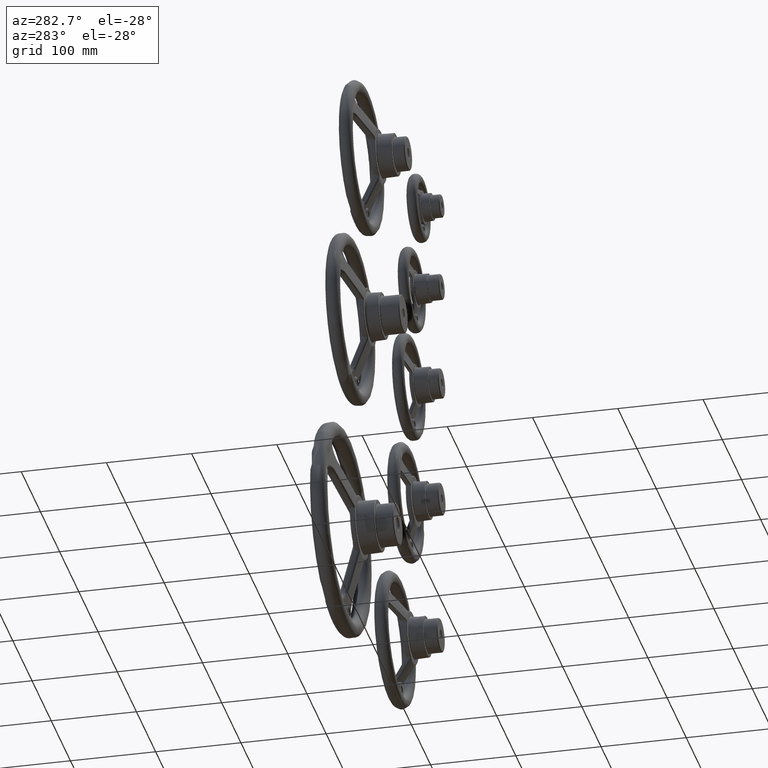
[diagram: clean part render]
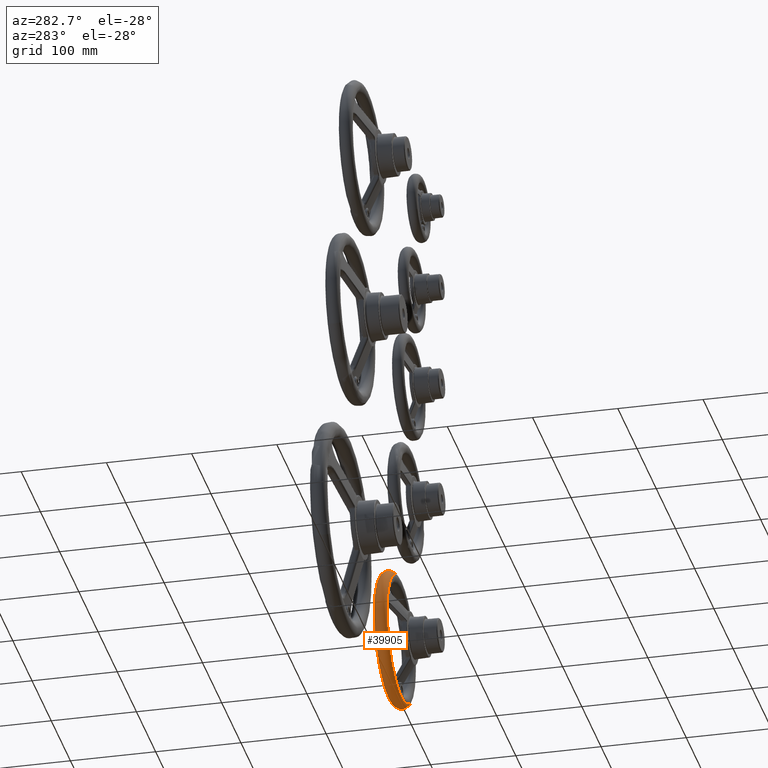
[diagram: same view with one face highlighted and labeled with its STEP entity id]
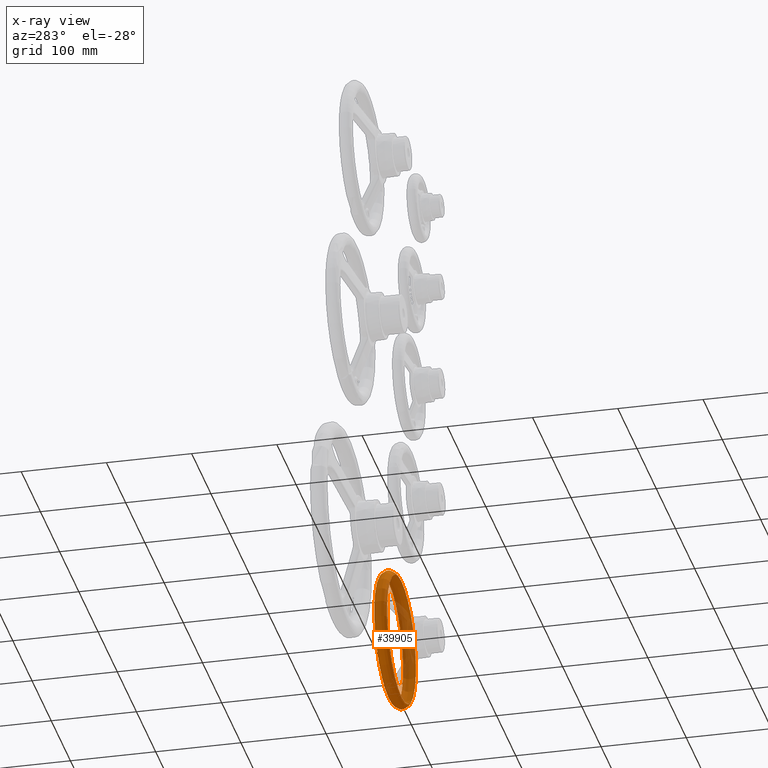
[diagram: x-ray of the same camera — body ghosted, the highlighted face saturated]
A machine part, auxiliary view. The second image highlights one B-rep face of the part: STEP entity #39905.
The next image is the same camera in x-ray: the body ghosted, the highlighted face saturated — about 21% of this face is hidden behind the body in this view.
In plain terms, the highlighted toroidal blend (fillet) surface has major radius 72 mm and minor (blend) radius 8 mm.
Its self-contained STEP definition (entity closure, byte-faithful):
#6421=FACE_OUTER_BOUND('',#9418,.T.);
#8153=FACE_BOUND('',#9419,.T.);
#9418=EDGE_LOOP('',(#31201,#31202));
#9419=EDGE_LOOP('',(#31203,#31204));
#14660=CIRCLE('',#42716,74.6455755761395);
#14661=CIRCLE('',#42717,74.6455755761395);
#14662=CIRCLE('',#42718,74.6455755761405);
#14663=CIRCLE('',#42719,74.6455755761401);
#17097=VERTEX_POINT('',#109901);
#17098=VERTEX_POINT('',#109902);
#17099=VERTEX_POINT('',#109905);
#17100=VERTEX_POINT('',#109906);
#22145=EDGE_CURVE('',#17097,#17098,#14660,.T.);
#22146=EDGE_CURVE('',#17098,#17097,#14661,.T.);
#22147=EDGE_CURVE('',#17099,#17100,#14662,.T.);
#22148=EDGE_CURVE('',#17100,#17099,#14663,.T.);
#31201=ORIENTED_EDGE('',*,*,#22145,.T.);
#31202=ORIENTED_EDGE('',*,*,#22146,.T.);
#31203=ORIENTED_EDGE('',*,*,#22147,.T.);
#31204=ORIENTED_EDGE('',*,*,#22148,.T.);
#38742=TOROIDAL_SURFACE('',#42715,72.,8.00000000000006);
#39905=ADVANCED_FACE('',(#6421,#8153),#38742,.T.);
#42715=AXIS2_PLACEMENT_3D('',#109900,#47668,#47669);
#42716=AXIS2_PLACEMENT_3D('',#109903,#47670,#47671);
#42717=AXIS2_PLACEMENT_3D('',#109904,#47672,#47673);
#42718=AXIS2_PLACEMENT_3D('',#109907,#47674,#47675);
#42719=AXIS2_PLACEMENT_3D('',#109908,#47676,#47677);
#47668=DIRECTION('center_axis',(1.,0.,0.));
#47669=DIRECTION('ref_axis',(0.,0.,-1.));
#47670=DIRECTION('center_axis',(1.,0.,0.));
#47671=DIRECTION('ref_axis',(0.,0.,-1.));
#47672=DIRECTION('center_axis',(1.,0.,0.));
#47673=DIRECTION('ref_axis',(0.,0.,-1.));
#47674=DIRECTION('center_axis',(-1.,0.,3.63116689809562E-19));
#47675=DIRECTION('ref_axis',(3.63116689809562E-19,0.,1.));
#47676=DIRECTION('center_axis',(-1.,0.,0.));
#47677=DIRECTION('ref_axis',(0.,0.,1.));
#109900=CARTESIAN_POINT('Origin',(-8.00000000000006,-1.38777878078145E-14,
4.57072325999156E-15));
#109901=CARTESIAN_POINT('',(-15.5498960172281,-74.6455755761394,1.85287909924146E-14));
#109902=CARTESIAN_POINT('',(-15.5498960172281,74.6455755761394,-1.15907401182839E-14));
#109903=CARTESIAN_POINT('Origin',(-15.5498960172286,0.,-4.57072325999156E-15));
#109904=CARTESIAN_POINT('Origin',(-15.5498960172286,0.,4.57072325999156E-15));
#109905=CARTESIAN_POINT('',(-0.450103982773808,74.6455755761402,-9.14144651998321E-15));
#109906=CARTESIAN_POINT('',(-0.450103982773858,-74.6455755761403,1.09697358239799E-14));
#109907=CARTESIAN_POINT('Origin',(-0.450103982773193,0.,-4.57072325999162E-15));
#109908=CARTESIAN_POINT('Origin',(-0.450103982774603,0.,4.57072325999159E-15));